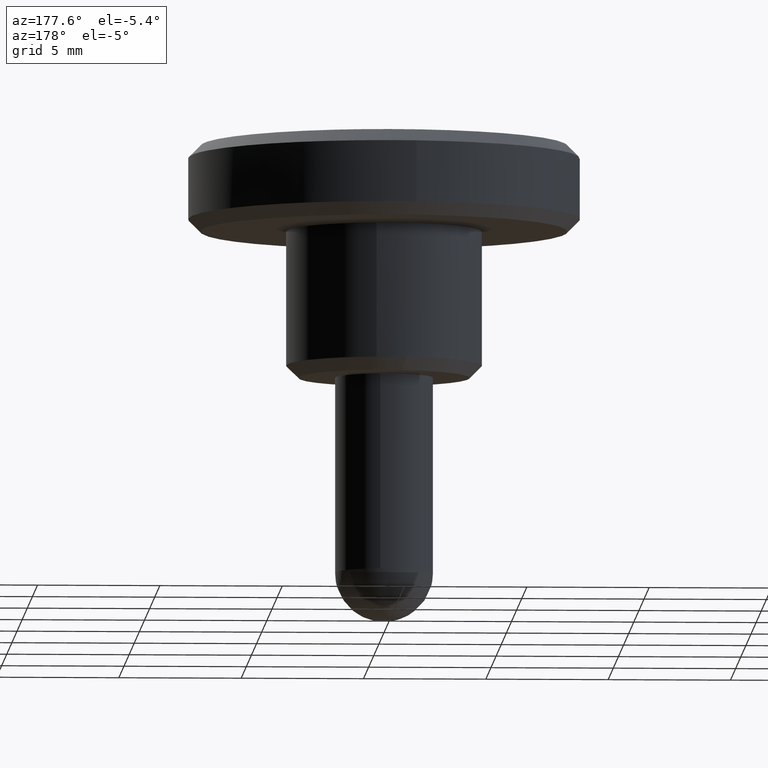
[diagram: clean part render]
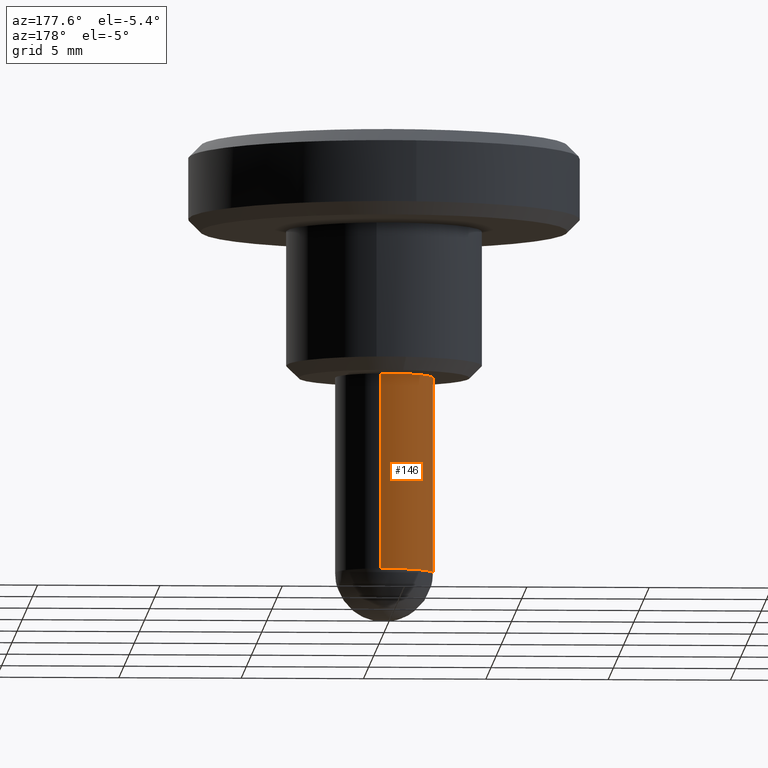
[diagram: same view with one face highlighted and labeled with its STEP entity id]
A machine part, auxiliary view. The second image highlights one B-rep face of the part: STEP entity #146.
In plain terms, the highlighted face is a freeform B-spline surface patch.
Its self-contained STEP definition (entity closure, byte-faithful):
#44=CARTESIAN_POINT('',(0.236068469313507,1.986019052727249,-8.199999999999662));
#45=CARTESIAN_POINT('',(0.179229457275948,1.992775230897126,-8.199999999999662));
#46=CARTESIAN_POINT('',(0.122097079069709,1.996269596843649,-8.199999999999662));
#47=CARTESIAN_POINT('',(-1.874172517773940,2.118366675913357,-8.199999999999662));
#48=CARTESIAN_POINT('',(-1.996269596843649,0.122097079069709,-8.199999999999662));
#49=CARTESIAN_POINT('',(-2.118366675913357,-1.874172517773940,-8.199999999999662));
#50=CARTESIAN_POINT('',(-0.122097079069709,-1.996269596843649,-8.199999999999662));
#51=CARTESIAN_POINT('',(0.236068469313507,1.986019052727249,0.204999999999990));
#52=CARTESIAN_POINT('',(0.179229457275948,1.992775230897126,0.204999999999990));
#53=CARTESIAN_POINT('',(0.122097079069709,1.996269596843649,0.204999999999990));
#54=CARTESIAN_POINT('',(-1.874172517773940,2.118366675913357,0.204999999999990));
#55=CARTESIAN_POINT('',(-1.996269596843649,0.122097079069709,0.204999999999990));
#56=CARTESIAN_POINT('',(-2.118366675913357,-1.874172517773940,0.204999999999990));
#57=CARTESIAN_POINT('',(-0.122097079069709,-1.996269596843649,0.204999999999990));
#65=(BOUNDED_SURFACE()B_SPLINE_SURFACE(2,1,((#44,#51),(#45,#52),(#46,#53),(#47,#54),(#48,#55),(#49,#56),(#50,#57)),.UNSPECIFIED.,.F.,.F.,.U.)B_SPLINE_SURFACE_WITH_KNOTS((3,2,2,3),(2,2),(0.0,0.132548339959385,3.446256838944004,6.759965337928622),(0.0,8.404999999999655),.UNSPECIFIED.)GEOMETRIC_REPRESENTATION_ITEM()RATIONAL_B_SPLINE_SURFACE(((0.977505800795127,0.977505800795127),(0.988284271247462,0.988284271247462),(1.0,1.0),(0.707106781186548,0.707106781186548),(1.0,1.0),(0.707106781186548,0.707106781186548),(1.0,1.0)))REPRESENTATION_ITEM('')SURFACE());
#66=CARTESIAN_POINT('',(0.236068469329426,1.986019052725356,-7.999999999999669));
#67=VERTEX_POINT('',#66);
#68=CARTESIAN_POINT('',(-1.999999999999915,0.0,-7.999999999999669));
#69=VERTEX_POINT('',#68);
#70=CARTESIAN_POINT('',(0.236068469329426,1.986019052725357,-7.999999999999669));
#71=CARTESIAN_POINT('',(0.118448239319902,1.999999999999915,-7.999999999999668));
#72=CARTESIAN_POINT('',(0.0,1.999999999999915,-7.999999999999669));
#73=CARTESIAN_POINT('',(-1.999999999999915,1.999999999999915,-7.999999999999669));
#74=CARTESIAN_POINT('',(-1.999999999999915,0.0,-7.999999999999669));
#82=(BOUNDED_CURVE()B_SPLINE_CURVE(2,(#70,#71,#72,#73,#74),.UNSPECIFIED.,.F.,.U.)B_SPLINE_CURVE_WITH_KNOTS((3,2,3),(0.229562473512935,0.250000000000000,0.500000000000000),.UNSPECIFIED.)CURVE()GEOMETRIC_REPRESENTATION_ITEM()RATIONAL_B_SPLINE_CURVE((0.956026754182576,0.976055948330473,1.0,0.707106781186548,1.0))REPRESENTATION_ITEM(''));
#83=EDGE_CURVE('',#67,#69,#82,.T.);
#84=ORIENTED_EDGE('',*,*,#83,.T.);
#85=CARTESIAN_POINT('',(-0.122097079089714,-1.996269596842426,-7.999999999999668));
#86=VERTEX_POINT('',#85);
#87=CARTESIAN_POINT('',(-1.999999999999915,0.0,-7.999999999999669));
#88=CARTESIAN_POINT('',(-1.999999999999915,-1.881412133773529,-7.999999999999668));
#89=CARTESIAN_POINT('',(-0.122097079089714,-1.996269596842425,-7.999999999999668));
#97=(BOUNDED_CURVE()B_SPLINE_CURVE(2,(#87,#88,#89),.UNSPECIFIED.,.F.,.U.)B_SPLINE_CURVE_WITH_KNOTS((3,3),(0.500000000000000,0.739332962238510),.UNSPECIFIED.)CURVE()GEOMETRIC_REPRESENTATION_ITEM()RATIONAL_B_SPLINE_CURVE((1.0,0.719603993287218,0.976072041665790))REPRESENTATION_ITEM(''));
#98=EDGE_CURVE('',#69,#86,#97,.T.);
#99=ORIENTED_EDGE('',*,*,#98,.T.);
#100=CARTESIAN_POINT('',(-0.122097079089714,-1.996269596842426,-2.359224E-016));
#101=VERTEX_POINT('',#100);
#102=CARTESIAN_POINT('',(-0.122097079089714,-1.996269596842426,-7.999999999999668));
#103=CARTESIAN_POINT('',(-0.122097079089714,-1.996269596842426,-2.359224E-016));
#104=QUASI_UNIFORM_CURVE('',1,(#102,#103),.UNSPECIFIED.,.F.,.U.);
#105=EDGE_CURVE('',#86,#101,#104,.T.);
#106=ORIENTED_EDGE('',*,*,#105,.T.);
#107=CARTESIAN_POINT('',(-1.999999999999915,0.0,0.0));
#108=VERTEX_POINT('',#107);
#109=CARTESIAN_POINT('',(-1.999999999999915,0.0,0.0));
#110=CARTESIAN_POINT('',(-1.999999999999915,-1.881412133773529,0.0));
#111=CARTESIAN_POINT('',(-0.122097079089714,-1.996269596842425,-2.359224E-016));
#119=(BOUNDED_CURVE()B_SPLINE_CURVE(2,(#109,#110,#111),.UNSPECIFIED.,.F.,.U.)B_SPLINE_CURVE_WITH_KNOTS((3,3),(0.500000000000000,0.739332962238510),.UNSPECIFIED.)CURVE()GEOMETRIC_REPRESENTATION_ITEM()RATIONAL_B_SPLINE_CURVE((1.0,0.719603993287218,0.976072041665790))REPRESENTATION_ITEM(''));
#120=EDGE_CURVE('',#108,#101,#119,.T.);
#121=ORIENTED_EDGE('',*,*,#120,.F.);
#122=CARTESIAN_POINT('',(0.236068469329426,1.986019052725356,-2.271543E-016));
#123=VERTEX_POINT('',#122);
#124=CARTESIAN_POINT('',(0.236068469329426,1.986019052725356,-2.271543E-016));
#125=CARTESIAN_POINT('',(0.118448239319902,1.999999999999915,0.0));
#126=CARTESIAN_POINT('',(0.0,1.999999999999915,0.0));
#127=CARTESIAN_POINT('',(-1.999999999999915,1.999999999999915,0.0));
#128=CARTESIAN_POINT('',(-1.999999999999915,0.0,0.0));
#136=(BOUNDED_CURVE()B_SPLINE_CURVE(2,(#124,#125,#126,#127,#128),.UNSPECIFIED.,.F.,.U.)B_SPLINE_CURVE_WITH_KNOTS((3,2,3),(0.229562473512935,0.250000000000000,0.500000000000000),.UNSPECIFIED.)CURVE()GEOMETRIC_REPRESENTATION_ITEM()RATIONAL_B_SPLINE_CURVE((0.956026754182575,0.976055948330473,1.0,0.707106781186548,1.0))REPRESENTATION_ITEM(''));
#137=EDGE_CURVE('',#123,#108,#136,.T.);
#138=ORIENTED_EDGE('',*,*,#137,.F.);
#139=CARTESIAN_POINT('',(0.236068469329426,1.986019052725356,-7.999999999999669));
#140=CARTESIAN_POINT('',(0.236068469329426,1.986019052725356,-2.271543E-016));
#141=QUASI_UNIFORM_CURVE('',1,(#139,#140),.UNSPECIFIED.,.F.,.U.);
#142=EDGE_CURVE('',#67,#123,#141,.T.);
#143=ORIENTED_EDGE('',*,*,#142,.F.);
#144=EDGE_LOOP('',(#84,#99,#106,#121,#138,#143));
#145=FACE_OUTER_BOUND('',#144,.T.);
#146=ADVANCED_FACE('',(#145),#65,.T.);